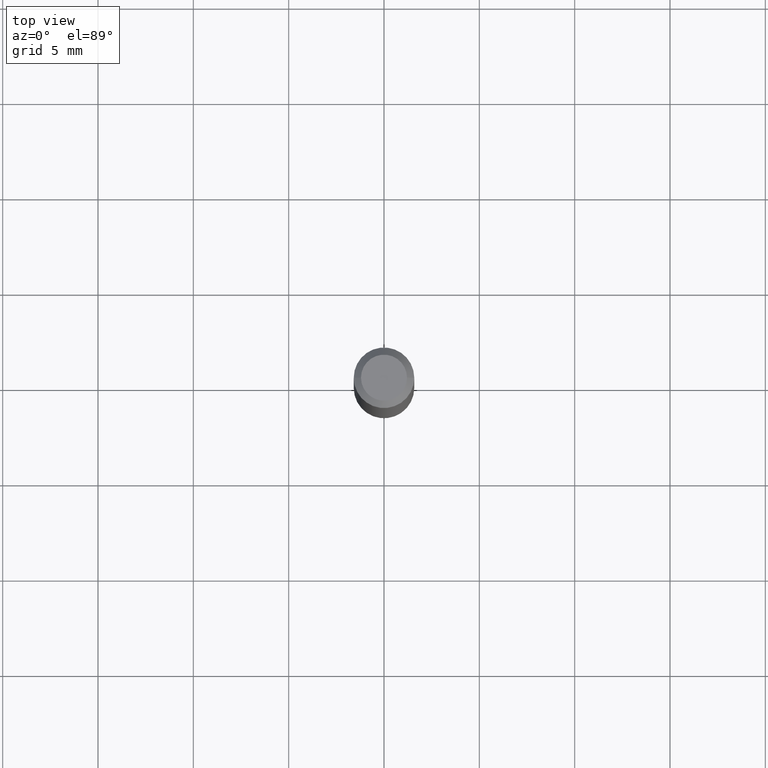
[diagram: clean part render]
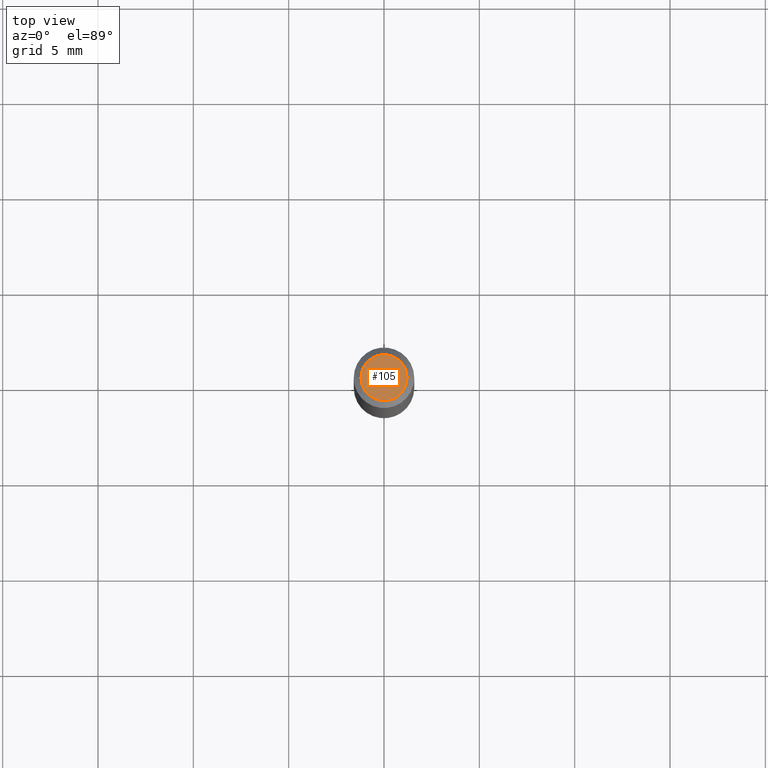
[diagram: same view with one face highlighted and labeled with its STEP entity id]
A machine part, top view. The second image highlights one B-rep face of the part: STEP entity #105.
In plain terms, the highlighted planar face has unit normal (0, -0, -1).
Its self-contained STEP definition (entity closure, byte-faithful):
#1 = DIRECTION ( 'NONE',  ( 1.000000000000000000, -6.982962677686267499E-15, 4.852736867747366768E-29 ) ) ;
#16 = CARTESIAN_POINT ( 'NONE',  ( 0.04749999999999999362, -4.035134999187586019E-16, -4.684051019975741414E-16 ) ) ;
#52 = VERTEX_POINT ( 'NONE', #16 ) ;
#56 = CIRCLE ( 'NONE', #269, 0.04749999999999999362 ) ;
#73 = CIRCLE ( 'NONE', #318, 0.04749999999999999362 ) ;
#103 = DIRECTION ( 'NONE',  ( -1.000000000000000000, 6.982962677686265922E-15, -4.876176775795935793E-29 ) ) ;
#105 = ADVANCED_FACE ( 'NONE', ( #165 ), #130, .F. ) ;
#106 = ORIENTED_EDGE ( 'NONE', *, *, #361, .T. ) ;
#107 = DIRECTION ( 'NONE',  ( -2.445468806185136597E-29, 3.491481338843145583E-15, 1.000000000000000000 ) ) ;
#115 = CARTESIAN_POINT ( 'NONE',  ( 1.145470065593040868E-44, -1.635427672643458845E-30, -4.684051019975766066E-16 ) ) ;
#130 = PLANE ( 'NONE',  #176 ) ;
#165 = FACE_OUTER_BOUND ( 'NONE', #243, .T. ) ;
#169 = DIRECTION ( 'NONE',  ( 2.438088387897960049E-29, -3.491481338843145188E-15, -1.000000000000000000 ) ) ;
#176 = AXIS2_PLACEMENT_3D ( 'NONE', #311, #169, #103 ) ;
#187 = CARTESIAN_POINT ( 'NONE',  ( -0.04749999999999999362, 3.578768372314202617E-16, -4.684051019975790718E-16 ) ) ;
#214 = DIRECTION ( 'NONE',  ( 1.000000000000000000, -6.982962677686267499E-15, 4.852736867747366768E-29 ) ) ;
#243 = EDGE_LOOP ( 'NONE', ( #106, #286 ) ) ;
#269 = AXIS2_PLACEMENT_3D ( 'NONE', #115, #107, #1 ) ;
#286 = ORIENTED_EDGE ( 'NONE', *, *, #352, .T. ) ;
#311 = CARTESIAN_POINT ( 'NONE',  ( 3.316907271900976096E-16, 0.04749999999999999362, -4.000479145938377490E-16 ) ) ;
#318 = AXIS2_PLACEMENT_3D ( 'NONE', #433, #399, #214 ) ;
#344 = VERTEX_POINT ( 'NONE', #187 ) ;
#352 = EDGE_CURVE ( 'NONE', #52, #344, #56, .T. ) ;
#361 = EDGE_CURVE ( 'NONE', #344, #52, #73, .T. ) ;
#399 = DIRECTION ( 'NONE',  ( -2.445468806185136597E-29, 3.491481338843145583E-15, 1.000000000000000000 ) ) ;
#433 = CARTESIAN_POINT ( 'NONE',  ( 1.145470065593040868E-44, -1.635427672643458845E-30, -4.684051019975766066E-16 ) ) ;